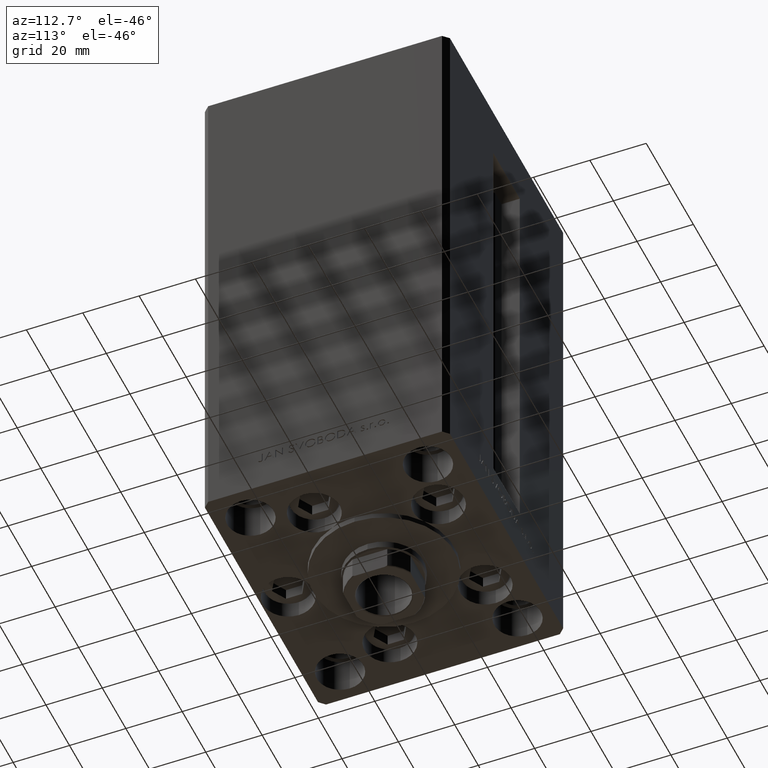
[diagram: clean part render]
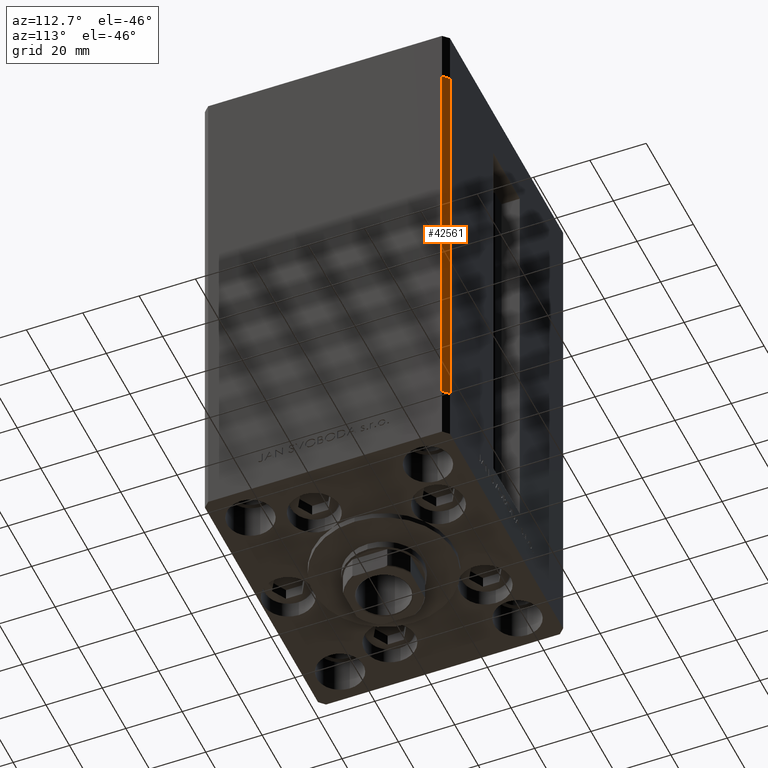
[diagram: same view with one face highlighted and labeled with its STEP entity id]
A machine part, auxiliary view. The second image highlights one B-rep face of the part: STEP entity #42561.
In plain terms, the highlighted planar face has unit normal (0.7071, 0.7071, 0).
Its self-contained STEP definition (entity closure, byte-faithful):
#751 = EDGE_CURVE ( 'NONE', #16409, #23020, #46208, .T. ) ;
#1199 = DIRECTION ( 'NONE',  ( -0.000000000000000000, -0.000000000000000000, -1.000000000000000000 ) ) ;
#1823 = ORIENTED_EDGE ( 'NONE', *, *, #43087, .T. ) ;
#2047 = EDGE_LOOP ( 'NONE', ( #46209, #39593, #1823, #28762 ) ) ;
#3265 = VECTOR ( 'NONE', #44586, 1000.000000000000000 ) ;
#5386 = DIRECTION ( 'NONE',  ( 0.7071067811865463515, 0.7071067811865487940, -0.000000000000000000 ) ) ;
#6170 = DIRECTION ( 'NONE',  ( 0.7071067811865487940, -0.7071067811865463515, 0.000000000000000000 ) ) ;
#7036 = VECTOR ( 'NONE', #1199, 1000.000000000000000 ) ;
#10207 = DIRECTION ( 'NONE',  ( 0.7071067811865487940, -0.7071067811865463515, 0.000000000000000000 ) ) ;
#10324 = CARTESIAN_POINT ( 'NONE',  ( 50.00000000000001421, 41.49999999999999289, 148.5000000000000000 ) ) ;
#12116 = PLANE ( 'NONE',  #22811 ) ;
#12599 = CARTESIAN_POINT ( 'NONE',  ( 48.00000000000000711, 43.50000000000000000, 148.5000000000000000 ) ) ;
#13935 = CARTESIAN_POINT ( 'NONE',  ( 48.00000000000000711, 43.50000000000000000, 148.5000000000000000 ) ) ;
#16409 = VERTEX_POINT ( 'NONE', #27287 ) ;
#20134 = LINE ( 'NONE', #46955, #36553 ) ;
#22811 = AXIS2_PLACEMENT_3D ( 'NONE', #12599, #5386, #31999 ) ;
#23020 = VERTEX_POINT ( 'NONE', #41612 ) ;
#23581 = EDGE_CURVE ( 'NONE', #23020, #41208, #20134, .T. ) ;
#25227 = EDGE_CURVE ( 'NONE', #45515, #41208, #41085, .T. ) ;
#26435 = CARTESIAN_POINT ( 'NONE',  ( 50.00000000000001421, 41.49999999999999289, 148.5000000000000000 ) ) ;
#27287 = CARTESIAN_POINT ( 'NONE',  ( 48.00000000000000711, 43.50000000000000000, 148.5000000000000000 ) ) ;
#28762 = ORIENTED_EDGE ( 'NONE', *, *, #25227, .T. ) ;
#29229 = CARTESIAN_POINT ( 'NONE',  ( 50.00000000000001421, 41.49999999999999289, 0.000000000000000000 ) ) ;
#31999 = DIRECTION ( 'NONE',  ( -0.7071067811865487940, 0.7071067811865463515, 0.000000000000000000 ) ) ;
#35468 = FACE_OUTER_BOUND ( 'NONE', #2047, .T. ) ;
#36553 = VECTOR ( 'NONE', #6170, 1000.000000000000000 ) ;
#39593 = ORIENTED_EDGE ( 'NONE', *, *, #751, .F. ) ;
#41085 = LINE ( 'NONE', #26435, #3265 ) ;
#41096 = VECTOR ( 'NONE', #10207, 1000.000000000000000 ) ;
#41208 = VERTEX_POINT ( 'NONE', #29229 ) ;
#41612 = CARTESIAN_POINT ( 'NONE',  ( 48.00000000000000711, 43.50000000000000000, 0.000000000000000000 ) ) ;
#42561 = ADVANCED_FACE ( 'NONE', ( #35468 ), #12116, .T. ) ;
#43087 = EDGE_CURVE ( 'NONE', #16409, #45515, #48229, .T. ) ;
#44586 = DIRECTION ( 'NONE',  ( -0.000000000000000000, -0.000000000000000000, -1.000000000000000000 ) ) ;
#45515 = VERTEX_POINT ( 'NONE', #10324 ) ;
#45710 = CARTESIAN_POINT ( 'NONE',  ( 48.00000000000000711, 43.50000000000000000, 148.5000000000000000 ) ) ;
#46208 = LINE ( 'NONE', #45710, #7036 ) ;
#46209 = ORIENTED_EDGE ( 'NONE', *, *, #23581, .F. ) ;
#46955 = CARTESIAN_POINT ( 'NONE',  ( 48.00000000000000711, 43.50000000000000000, 0.000000000000000000 ) ) ;
#48229 = LINE ( 'NONE', #13935, #41096 ) ;